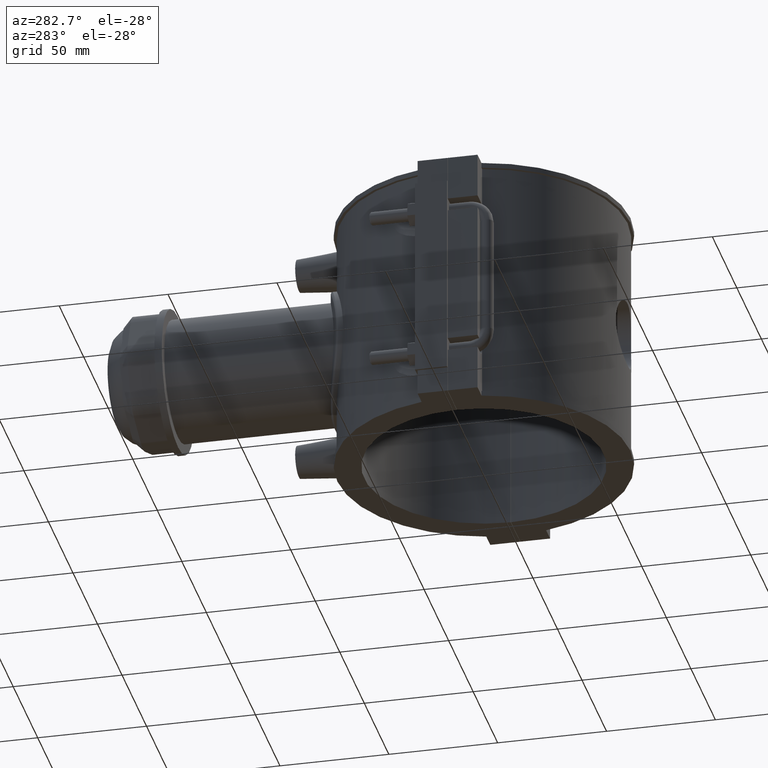
[diagram: clean part render]
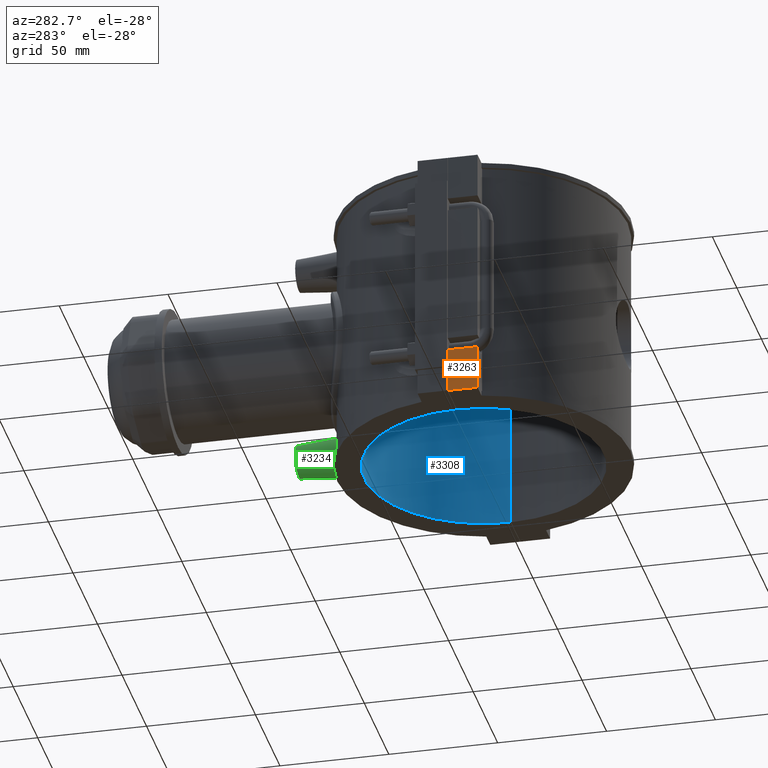
[diagram: same view with three faces highlighted in distinct colors, each labeled with its STEP entity id]
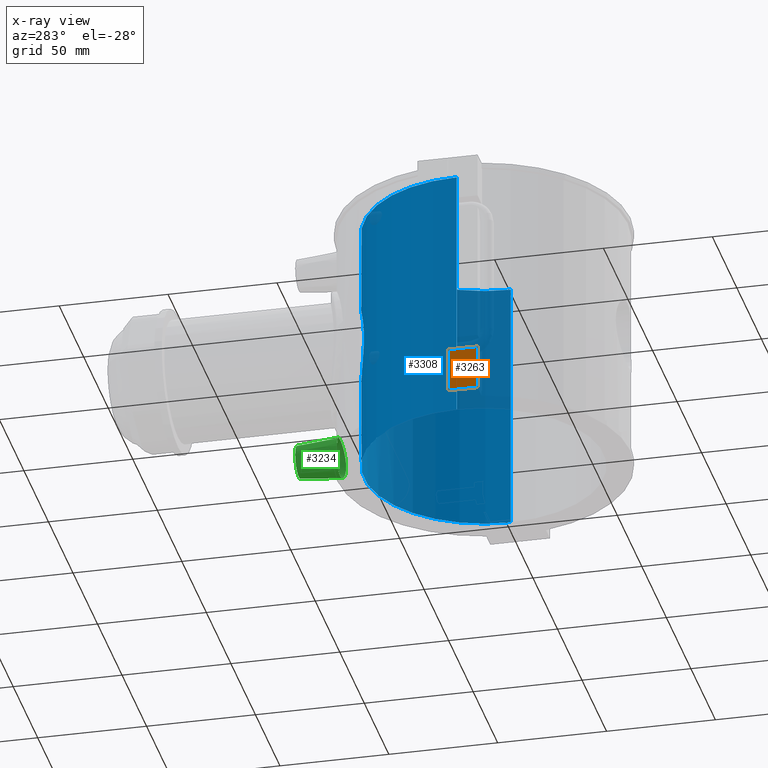
[diagram: x-ray of the same camera — body ghosted, the three highlighted faces saturated]
A machine part, auxiliary view with three faces highlighted in distinct colors.
The next image is the same camera in x-ray (body ghosted, the three faces saturated) — at least one of them is partly hidden behind the body in this view.
Their STEP definitions:

[orange] entity #3263 — the highlighted planar face has unit normal (-1, 0, 0).
#123=LINE('',#5475,#410);
#265=LINE('',#6373,#552);
#268=LINE('',#6381,#555);
#269=LINE('',#6382,#556);
#410=VECTOR('',#3910,20.6);
#552=VECTOR('',#4288,13.7);
#555=VECTOR('',#4297,20.6);
#556=VECTOR('',#4298,13.7);
#697=PLANE('',#3541);
#1035=FACE_OUTER_BOUND('',#1262,.T.);
#1262=EDGE_LOOP('',(#2812,#2813,#2814,#2815));
#1488=VERTEX_POINT('',#5472);
#1489=VERTEX_POINT('',#5474);
#1639=VERTEX_POINT('',#6371);
#1641=VERTEX_POINT('',#6380);
#1841=EDGE_CURVE('',#1489,#1488,#123,.T.);
#2053=EDGE_CURVE('',#1488,#1639,#265,.T.);
#2057=EDGE_CURVE('',#1639,#1641,#268,.T.);
#2058=EDGE_CURVE('',#1489,#1641,#269,.T.);
#2812=ORIENTED_EDGE('',*,*,#2053,.T.);
#2813=ORIENTED_EDGE('',*,*,#2057,.T.);
#2814=ORIENTED_EDGE('',*,*,#2058,.F.);
#2815=ORIENTED_EDGE('',*,*,#1841,.T.);
#3263=ADVANCED_FACE('',(#1035),#697,.T.);
#3541=AXIS2_PLACEMENT_3D('',#6379,#4295,#4296);
#3910=DIRECTION('',(0.,0.,1.));
#4288=DIRECTION('',(0.,1.,0.));
#4295=DIRECTION('center_axis',(-1.,0.,0.));
#4296=DIRECTION('ref_axis',(0.,-1.,0.));
#4297=DIRECTION('',(0.,0.,-1.));
#4298=DIRECTION('',(0.,1.,0.));
#5472=CARTESIAN_POINT('',(-74.,-13.75,-38.4));
#5474=CARTESIAN_POINT('',(-74.,-13.75,-59.));
#5475=CARTESIAN_POINT('',(-74.,-13.75,0.));
#6371=CARTESIAN_POINT('',(-74.,-0.0500000000000078,-38.4));
#6373=CARTESIAN_POINT('',(-74.,3.33066907387547E-15,-38.4));
#6379=CARTESIAN_POINT('Origin',(-74.,13.75,0.));
#6380=CARTESIAN_POINT('',(-74.,-0.0500000000000078,-59.));
#6381=CARTESIAN_POINT('',(-74.,-0.0500000000000078,-29.5));
#6382=CARTESIAN_POINT('',(-74.,13.75,-59.));

[blue] entity #3308 — the highlighted cylindrical surface (partial cylindrical patch) has radius 55 mm, axis along (0, 0, 1).
#274=LINE('',#6393,#561);
#321=LINE('',#6700,#608);
#561=VECTOR('',#4309,118.);
#608=VECTOR('',#4468,118.);
#840=CIRCLE('',#3604,55.);
#841=CIRCLE('',#3605,55.);
#894=FACE_BOUND('',#1321,.T.);
#1080=FACE_OUTER_BOUND('',#1320,.T.);
#1320=EDGE_LOOP('',(#3055,#3056,#3057,#3058));
#1321=EDGE_LOOP('',(#3059));
#1324=B_SPLINE_CURVE_WITH_KNOTS('',3,(#4490,#4491,#4492,#4493,#4494,#4495,
#4496,#4497,#4498,#4499,#4500,#4501,#4502,#4503,#4504,#4505,#4506,#4507,
#4508,#4509,#4510,#4511,#4512,#4513,#4514,#4515,#4516,#4517,#4518,#4519,
#4520,#4521,#4522,#4523,#4524,#4525,#4526,#4527,#4528,#4529,#4530,#4531,
#4532,#4533,#4534,#4535,#4536,#4537,#4538,#4539,#4540,#4541,#4542,#4543,
#4544,#4545,#4546,#4547,#4548,#4549,#4550,#4551,#4552,#4553,#4554,#4555),
 .UNSPECIFIED.,.T.,.F.,(4,2,2,2,2,2,2,2,2,2,2,2,2,2,2,2,2,2,2,2,2,2,2,2,
2,2,2,2,2,2,2,2,4),(0.,0.441361258447043,0.882722516894086,1.32408377534113,
1.76544503378817,2.20625403623928,2.64706303869039,3.0878720411415,3.52868104359261,
3.96949004604372,4.41029904849483,4.85110805094594,5.29191705339705,5.73327831184409,
6.17463957029114,6.61600082873818,7.05736208718522,7.49872334563227,7.94008460407931,
8.38144586252635,8.82280712097339,9.2636161234245,9.70442512587561,10.1452341283267,
10.5860431307778,11.0268521332289,11.4676611356801,11.9084701381312,12.3492791405823,
12.7906403990293,13.2320016574764,13.6733629159234,14.1147241743704),
 .UNSPECIFIED.);
#1381=VERTEX_POINT('',#4489);
#1643=VERTEX_POINT('',#6390);
#1644=VERTEX_POINT('',#6392);
#1685=VERTEX_POINT('',#6697);
#1686=VERTEX_POINT('',#6699);
#1688=EDGE_CURVE('',#1381,#1381,#1324,.T.);
#2063=EDGE_CURVE('',#1644,#1643,#274,.T.);
#2137=EDGE_CURVE('',#1686,#1685,#321,.T.);
#2142=EDGE_CURVE('',#1644,#1685,#840,.T.);
#2143=EDGE_CURVE('',#1686,#1643,#841,.T.);
#3055=ORIENTED_EDGE('',*,*,#2137,.T.);
#3056=ORIENTED_EDGE('',*,*,#2142,.F.);
#3057=ORIENTED_EDGE('',*,*,#2063,.T.);
#3058=ORIENTED_EDGE('',*,*,#2143,.F.);
#3059=ORIENTED_EDGE('',*,*,#1688,.T.);
#3122=CYLINDRICAL_SURFACE('',#3603,55.);
#3308=ADVANCED_FACE('',(#1080,#894),#3122,.F.);
#3603=AXIS2_PLACEMENT_3D('',#6708,#4477,#4478);
#3604=AXIS2_PLACEMENT_3D('',#6709,#4479,#4480);
#3605=AXIS2_PLACEMENT_3D('',#6710,#4481,#4482);
#4309=DIRECTION('',(0.,0.,-1.));
#4468=DIRECTION('',(0.,0.,1.));
#4477=DIRECTION('center_axis',(0.,0.,1.));
#4478=DIRECTION('ref_axis',(-1.,0.,0.));
#4479=DIRECTION('center_axis',(0.,0.,-1.));
#4480=DIRECTION('ref_axis',(-1.,0.,0.));
#4481=DIRECTION('center_axis',(0.,0.,1.));
#4482=DIRECTION('ref_axis',(-1.,0.,0.));
#4489=CARTESIAN_POINT('',(-23.1,49.9138257399691,5.55111512312578E-16));
#4490=CARTESIAN_POINT('Ctrl Pts',(-23.1,49.9138257399691,5.55111512312578E-16));
#4491=CARTESIAN_POINT('Ctrl Pts',(-23.1,49.9138257399691,1.47120419482348));
#4492=CARTESIAN_POINT('Ctrl Pts',(-22.9572064086757,49.9807248438412,2.98573356052082));
#4493=CARTESIAN_POINT('Ctrl Pts',(-22.3633792832401,50.2492333150931,5.98558253811903));
#4494=CARTESIAN_POINT('Ctrl Pts',(-21.9125490043496,50.4504959327722,7.47097340762011));
#4495=CARTESIAN_POINT('Ctrl Pts',(-20.7287353609784,50.9483249069085,10.3099396081915));
#4496=CARTESIAN_POINT('Ctrl Pts',(-19.9948133833288,51.2446990758967,11.6661213522771));
#4497=CARTESIAN_POINT('Ctrl Pts',(-18.3056303009715,51.8721085433549,14.1702099195142));
#4498=CARTESIAN_POINT('Ctrl Pts',(-17.3501849208902,52.2025213170559,15.3181483699283));
#4499=CARTESIAN_POINT('Ctrl Pts',(-15.31941966906,52.8341243724788,17.3489136217585));
#4500=CARTESIAN_POINT('Ctrl Pts',(-14.1720954505926,53.1583604326458,18.3041933190049));
#4501=CARTESIAN_POINT('Ctrl Pts',(-11.6677027325454,53.7635962921294,19.9939114624943));
#4502=CARTESIAN_POINT('Ctrl Pts',(-10.310599478615,54.0440862957416,20.72848095931));
#4503=CARTESIAN_POINT('Ctrl Pts',(-7.46975680243599,54.5093978976223,21.913035553578));
#4504=CARTESIAN_POINT('Ctrl Pts',(-5.98343627832426,54.694275764783,22.3639627833204));
#4505=CARTESIAN_POINT('Ctrl Pts',(-2.98326384208304,54.9396527835943,22.9575364080202));
#4506=CARTESIAN_POINT('Ctrl Pts',(-1.4693633415037,55.,23.1));
#4507=CARTESIAN_POINT('Ctrl Pts',(1.46936334150369,55.,23.1));
#4508=CARTESIAN_POINT('Ctrl Pts',(2.98326384208303,54.9396527835943,22.9575364080202));
#4509=CARTESIAN_POINT('Ctrl Pts',(5.98343627832424,54.694275764783,22.3639627833204));
#4510=CARTESIAN_POINT('Ctrl Pts',(7.46975680243598,54.5093978976223,21.913035553578));
#4511=CARTESIAN_POINT('Ctrl Pts',(10.310599478615,54.0440862957416,20.72848095931));
#4512=CARTESIAN_POINT('Ctrl Pts',(11.6677027325454,53.7635962921294,19.9939114624943));
#4513=CARTESIAN_POINT('Ctrl Pts',(14.1720954505926,53.1583604326458,18.3041933190049));
#4514=CARTESIAN_POINT('Ctrl Pts',(15.31941966906,52.8341243724788,17.3489136217585));
#4515=CARTESIAN_POINT('Ctrl Pts',(17.3501849208902,52.2025213170559,15.3181483699283));
#4516=CARTESIAN_POINT('Ctrl Pts',(18.3056303009715,51.8721085433549,14.1702099195142));
#4517=CARTESIAN_POINT('Ctrl Pts',(19.9948133833288,51.2446990758967,11.6661213522771));
#4518=CARTESIAN_POINT('Ctrl Pts',(20.7287353609784,50.9483249069085,10.3099396081915));
#4519=CARTESIAN_POINT('Ctrl Pts',(21.9125490043496,50.4504959327722,7.47097340762011));
#4520=CARTESIAN_POINT('Ctrl Pts',(22.3633792832401,50.2492333150931,5.98558253811903));
#4521=CARTESIAN_POINT('Ctrl Pts',(22.9572064086757,49.9807248438412,2.98573356052082));
#4522=CARTESIAN_POINT('Ctrl Pts',(23.1,49.9138257399691,1.47120419482348));
#4523=CARTESIAN_POINT('Ctrl Pts',(23.1,49.9138257399691,-1.47120419482348));
#4524=CARTESIAN_POINT('Ctrl Pts',(22.9572064086757,49.9807248438412,-2.98573356052082));
#4525=CARTESIAN_POINT('Ctrl Pts',(22.3633792832401,50.2492333150931,-5.98558253811903));
#4526=CARTESIAN_POINT('Ctrl Pts',(21.9125490043496,50.4504959327722,-7.47097340762011));
#4527=CARTESIAN_POINT('Ctrl Pts',(20.7287353609784,50.9483249069085,-10.3099396081915));
#4528=CARTESIAN_POINT('Ctrl Pts',(19.9948133833288,51.2446990758967,-11.6661213522771));
#4529=CARTESIAN_POINT('Ctrl Pts',(18.3056303009715,51.8721085433549,-14.1702099195142));
#4530=CARTESIAN_POINT('Ctrl Pts',(17.3501849208902,52.2025213170559,-15.3181483699283));
#4531=CARTESIAN_POINT('Ctrl Pts',(15.31941966906,52.8341243724788,-17.3489136217585));
#4532=CARTESIAN_POINT('Ctrl Pts',(14.1720954505926,53.1583604326458,-18.3041933190049));
#4533=CARTESIAN_POINT('Ctrl Pts',(11.6677027325454,53.7635962921294,-19.9939114624943));
#4534=CARTESIAN_POINT('Ctrl Pts',(10.310599478615,54.0440862957416,-20.72848095931));
#4535=CARTESIAN_POINT('Ctrl Pts',(7.469756802436,54.5093978976223,-21.913035553578));
#4536=CARTESIAN_POINT('Ctrl Pts',(5.98343627832426,54.694275764783,-22.3639627833204));
#4537=CARTESIAN_POINT('Ctrl Pts',(2.98326384208304,54.9396527835943,-22.9575364080202));
#4538=CARTESIAN_POINT('Ctrl Pts',(1.4693633415037,55.,-23.1));
#4539=CARTESIAN_POINT('Ctrl Pts',(-1.46936334150369,55.,-23.1));
#4540=CARTESIAN_POINT('Ctrl Pts',(-2.98326384208303,54.9396527835943,-22.9575364080202));
#4541=CARTESIAN_POINT('Ctrl Pts',(-5.98343627832423,54.694275764783,-22.3639627833204));
#4542=CARTESIAN_POINT('Ctrl Pts',(-7.46975680243597,54.5093978976223,-21.913035553578));
#4543=CARTESIAN_POINT('Ctrl Pts',(-10.310599478615,54.0440862957416,-20.72848095931));
#4544=CARTESIAN_POINT('Ctrl Pts',(-11.6677027325454,53.7635962921294,-19.9939114624943));
#4545=CARTESIAN_POINT('Ctrl Pts',(-14.1720954505926,53.1583604326458,-18.3041933190049));
#4546=CARTESIAN_POINT('Ctrl Pts',(-15.31941966906,52.8341243724788,-17.3489136217585));
#4547=CARTESIAN_POINT('Ctrl Pts',(-17.3501849208901,52.2025213170559,-15.3181483699284));
#4548=CARTESIAN_POINT('Ctrl Pts',(-18.3056303009714,51.8721085433549,-14.1702099195142));
#4549=CARTESIAN_POINT('Ctrl Pts',(-19.9948133833288,51.2446990758967,-11.6661213522771));
#4550=CARTESIAN_POINT('Ctrl Pts',(-20.7287353609784,50.9483249069085,-10.3099396081915));
#4551=CARTESIAN_POINT('Ctrl Pts',(-21.9125490043496,50.4504959327722,-7.47097340762012));
#4552=CARTESIAN_POINT('Ctrl Pts',(-22.3633792832401,50.2492333150931,-5.98558253811904));
#4553=CARTESIAN_POINT('Ctrl Pts',(-22.9572064086757,49.9807248438412,-2.98573356052083));
#4554=CARTESIAN_POINT('Ctrl Pts',(-23.1,49.9138257399691,-1.47120419482348));
#4555=CARTESIAN_POINT('Ctrl Pts',(-23.1,49.9138257399691,-5.55111512312578E-16));
#6390=CARTESIAN_POINT('',(-54.9999772727226,0.0500000000000068,-59.));
#6392=CARTESIAN_POINT('',(-54.9999772727226,0.0500000000000068,59.));
#6393=CARTESIAN_POINT('',(-54.9999772727226,0.0500000000000068,0.));
#6697=CARTESIAN_POINT('',(54.9999772727226,0.050000000000001,59.));
#6699=CARTESIAN_POINT('',(54.9999772727226,0.050000000000001,-59.));
#6700=CARTESIAN_POINT('',(54.9999772727226,0.050000000000001,0.));
#6708=CARTESIAN_POINT('Origin',(0.,0.,0.));
#6709=CARTESIAN_POINT('Origin',(0.,0.,59.));
#6710=CARTESIAN_POINT('Origin',(0.,0.,-59.));

[green] entity #3234 — the highlighted conical surface has half-angle 5 deg.
#34=CONICAL_SURFACE('',#3496,7.5,5.);
#805=CIRCLE('',#3495,7.5);
#872=FACE_BOUND('',#1225,.T.);
#1006=FACE_OUTER_BOUND('',#1224,.T.);
#1224=EDGE_LOOP('',(#2680));
#1225=EDGE_LOOP('',(#2681));
#1349=B_SPLINE_CURVE_WITH_KNOTS('',3,(#5591,#5592,#5593,#5594,#5595,#5596,
#5597,#5598,#5599,#5600,#5601,#5602,#5603,#5604,#5605,#5606,#5607,#5608,
#5609,#5610,#5611,#5612,#5613,#5614,#5615,#5616,#5617,#5618,#5619,#5620,
#5621,#5622,#5623,#5624),.UNSPECIFIED.,.T.,.F.,(4,2,2,2,2,2,2,2,2,2,2,2,
2,2,2,2,4),(0.,0.346935904986798,0.693871809973595,1.04030921731693,1.38674662466027,
1.73318403200361,2.07962143934695,2.42655734433375,2.77349324932054,3.12042915430734,
3.46736505929414,3.81380246663748,4.16023987398082,4.50667728132415,4.85311468866749,
5.20005059365429,5.54698649864109),.UNSPECIFIED.);
#1516=VERTEX_POINT('',#5590);
#1606=VERTEX_POINT('',#6173);
#1875=EDGE_CURVE('',#1516,#1516,#1349,.T.);
#1999=EDGE_CURVE('',#1606,#1606,#805,.T.);
#2680=ORIENTED_EDGE('',*,*,#1999,.T.);
#2681=ORIENTED_EDGE('',*,*,#1875,.F.);
#3234=ADVANCED_FACE('',(#1006,#872),#34,.T.);
#3495=AXIS2_PLACEMENT_3D('',#6174,#4170,#4171);
#3496=AXIS2_PLACEMENT_3D('',#6175,#4172,#4173);
#4170=DIRECTION('center_axis',(0.,-1.,0.));
#4171=DIRECTION('ref_axis',(1.,0.,0.));
#4172=DIRECTION('center_axis',(0.,-1.,0.));
#4173=DIRECTION('ref_axis',(1.,0.,0.));
#5590=CARTESIAN_POINT('',(9.21889149209569,65.3529803425748,-47.2));
#5591=CARTESIAN_POINT('Ctrl Pts',(9.21889149209569,65.3529803425748,-47.2));
#5592=CARTESIAN_POINT('Ctrl Pts',(9.21889149209569,65.3529803425748,-46.0435469833774));
#5593=CARTESIAN_POINT('Ctrl Pts',(8.98509660190144,65.3872751603227,-44.8119297781224));
#5594=CARTESIAN_POINT('Ctrl Pts',(8.03868301556763,65.5103601412207,-42.5506935355608));
#5595=CARTESIAN_POINT('Ctrl Pts',(7.32619281653862,65.5972977842866,-41.5209202636936));
#5596=CARTESIAN_POINT('Ctrl Pts',(5.68787926987002,65.7595974634724,-39.8987494664931));
#5597=CARTESIAN_POINT('Ctrl Pts',(4.65283917326547,65.8455692822516,-39.1970628078988));
#5598=CARTESIAN_POINT('Ctrl Pts',(2.38634954577356,65.9666070224349,-38.2665218689298));
#5599=CARTESIAN_POINT('Ctrl Pts',(1.15479135781113,66.,-38.0377153930075));
#5600=CARTESIAN_POINT('Ctrl Pts',(-1.15479135781113,66.,-38.0377153930075));
#5601=CARTESIAN_POINT('Ctrl Pts',(-2.38634954577356,65.9666070224349,-38.2665218689298));
#5602=CARTESIAN_POINT('Ctrl Pts',(-4.65283917326547,65.8455692822516,-39.1970628078988));
#5603=CARTESIAN_POINT('Ctrl Pts',(-5.68787926987002,65.7595974634724,-39.8987494664931));
#5604=CARTESIAN_POINT('Ctrl Pts',(-7.32619281653862,65.5972977842866,-41.5209202636936));
#5605=CARTESIAN_POINT('Ctrl Pts',(-8.03868301556763,65.5103601412207,-42.5506935355608));
#5606=CARTESIAN_POINT('Ctrl Pts',(-8.98509660190144,65.3872751603227,-44.8119297781224));
#5607=CARTESIAN_POINT('Ctrl Pts',(-9.21889149209569,65.3529803425748,-46.0435469833774));
#5608=CARTESIAN_POINT('Ctrl Pts',(-9.21889149209569,65.3529803425748,-48.3564530166227));
#5609=CARTESIAN_POINT('Ctrl Pts',(-8.98509660190144,65.3872751603227,-49.5880702218776));
#5610=CARTESIAN_POINT('Ctrl Pts',(-8.03868301556763,65.5103601412207,-51.8493064644393));
#5611=CARTESIAN_POINT('Ctrl Pts',(-7.32619281653862,65.5972977842866,-52.8790797363064));
#5612=CARTESIAN_POINT('Ctrl Pts',(-5.68787926987002,65.7595974634724,-54.501250533507));
#5613=CARTESIAN_POINT('Ctrl Pts',(-4.65283917326547,65.8455692822516,-55.2029371921012));
#5614=CARTESIAN_POINT('Ctrl Pts',(-2.38634954577356,65.9666070224349,-56.1334781310702));
#5615=CARTESIAN_POINT('Ctrl Pts',(-1.15479135781113,66.,-56.3622846069926));
#5616=CARTESIAN_POINT('Ctrl Pts',(1.15479135781112,66.,-56.3622846069926));
#5617=CARTESIAN_POINT('Ctrl Pts',(2.38634954577355,65.9666070224349,-56.1334781310702));
#5618=CARTESIAN_POINT('Ctrl Pts',(4.65283917326546,65.8455692822516,-55.2029371921012));
#5619=CARTESIAN_POINT('Ctrl Pts',(5.68787926987002,65.7595974634724,-54.501250533507));
#5620=CARTESIAN_POINT('Ctrl Pts',(7.32619281653862,65.5972977842866,-52.8790797363065));
#5621=CARTESIAN_POINT('Ctrl Pts',(8.03868301556763,65.5103601412207,-51.8493064644393));
#5622=CARTESIAN_POINT('Ctrl Pts',(8.98509660190144,65.3872751603227,-49.5880702218776));
#5623=CARTESIAN_POINT('Ctrl Pts',(9.21889149209569,65.3529803425748,-48.3564530166227));
#5624=CARTESIAN_POINT('Ctrl Pts',(9.21889149209569,65.3529803425748,-47.2));
#6173=CARTESIAN_POINT('',(-7.5,85.,-47.2));
#6174=CARTESIAN_POINT('Origin',(0.,85.,-47.2));
#6175=CARTESIAN_POINT('Origin',(0.,85.,-47.2));